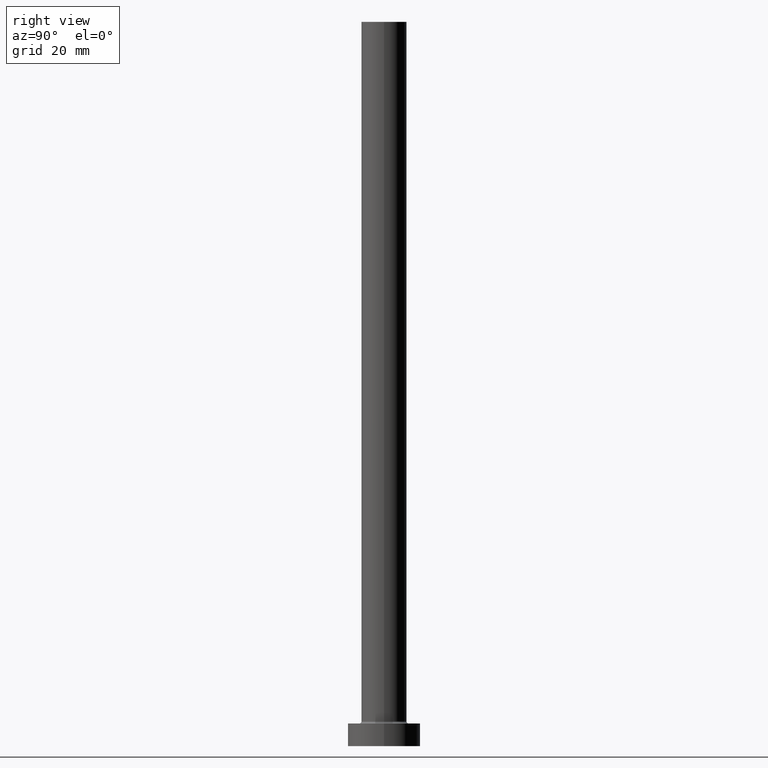
[diagram: clean part render]
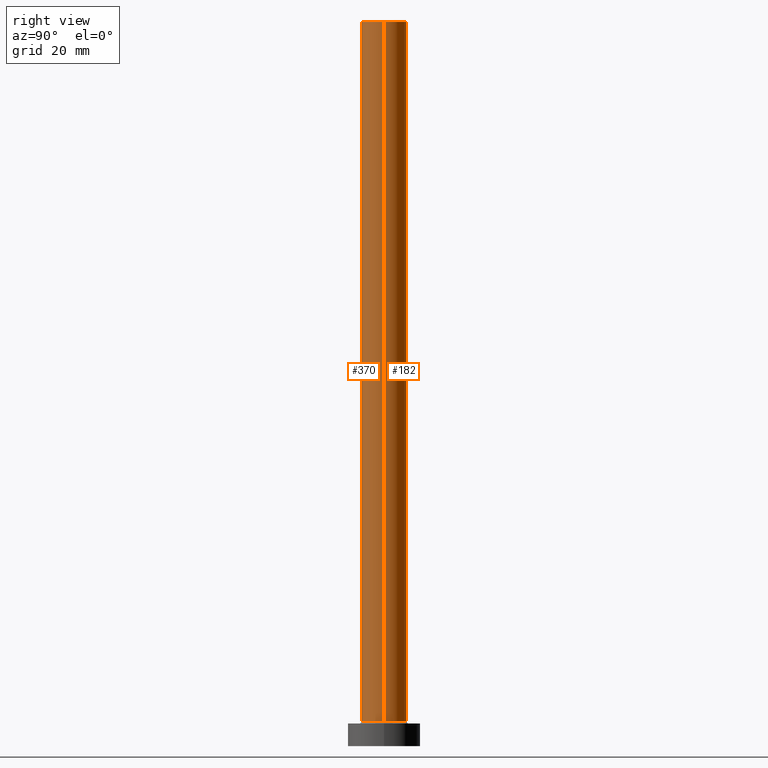
[diagram: same view with one multi-face feature highlighted, each face labeled with its STEP entity id]
A machine part, right view. The highlighted faces form ONE feature: a constant-radius fillet chain: 2 tangent blend faces with common blend radius 5 mm. The faces share edges in the B-rep.
Their STEP definitions:
[1] entity #370 (Cylinder):
#16 = EDGE_CURVE ( 'NONE', #422, #311, #173, .T. ) ;
#34 = CYLINDRICAL_SURFACE ( 'NONE', #41, 5.000000000000000000 ) ;
#41 = AXIS2_PLACEMENT_3D ( 'NONE', #246, #313, #174 ) ;
#42 = CARTESIAN_POINT ( 'NONE',  ( -5.000000000000000000, 0.000000000000000000, 160.0000000000000000 ) ) ;
#53 = CIRCLE ( 'NONE', #434, 5.000000000000000000 ) ;
#88 = CARTESIAN_POINT ( 'NONE',  ( 0.000000000000000000, 0.000000000000000000, 5.500000000000005329 ) ) ;
#90 = VECTOR ( 'NONE', #281, 1000.000000000000000 ) ;
#93 = CARTESIAN_POINT ( 'NONE',  ( 0.000000000000000000, 0.000000000000000000, 160.0000000000000000 ) ) ;
#111 = LINE ( 'NONE', #392, #90 ) ;
#112 = ORIENTED_EDGE ( 'NONE', *, *, #267, .T. ) ;
#129 = CARTESIAN_POINT ( 'NONE',  ( 5.000000000000000000, 6.123233995736766282E-16, 160.0000000000000000 ) ) ;
#132 = AXIS2_PLACEMENT_3D ( 'NONE', #93, #260, #339 ) ;
#137 = DIRECTION ( 'NONE',  ( -0.000000000000000000, -0.000000000000000000, -1.000000000000000000 ) ) ;
#173 = LINE ( 'NONE', #349, #385 ) ;
#174 = DIRECTION ( 'NONE',  ( -1.000000000000000000, 0.000000000000000000, 0.000000000000000000 ) ) ;
#194 = EDGE_CURVE ( 'NONE', #422, #251, #388, .T. ) ;
#208 = CARTESIAN_POINT ( 'NONE',  ( -5.000000000000000000, 0.000000000000000000, 5.500000000000005329 ) ) ;
#212 = ORIENTED_EDGE ( 'NONE', *, *, #194, .F. ) ;
#240 = FACE_OUTER_BOUND ( 'NONE', #387, .T. ) ;
#246 = CARTESIAN_POINT ( 'NONE',  ( 0.000000000000000000, 0.000000000000000000, 160.0000000000000000 ) ) ;
#251 = VERTEX_POINT ( 'NONE', #129 ) ;
#260 = DIRECTION ( 'NONE',  ( 0.000000000000000000, 0.000000000000000000, 1.000000000000000000 ) ) ;
#267 = EDGE_CURVE ( 'NONE', #311, #431, #53, .T. ) ;
#281 = DIRECTION ( 'NONE',  ( -0.000000000000000000, -0.000000000000000000, -1.000000000000000000 ) ) ;
#311 = VERTEX_POINT ( 'NONE', #208 ) ;
#313 = DIRECTION ( 'NONE',  ( -0.000000000000000000, -0.000000000000000000, -1.000000000000000000 ) ) ;
#339 = DIRECTION ( 'NONE',  ( 1.000000000000000000, 0.000000000000000000, 0.000000000000000000 ) ) ;
#349 = CARTESIAN_POINT ( 'NONE',  ( -5.000000000000000000, 0.000000000000000000, 160.0000000000000000 ) ) ;
#350 = ORIENTED_EDGE ( 'NONE', *, *, #409, .F. ) ;
#370 = ADVANCED_FACE ( 'NONE', ( #240 ), #34, .T. ) ;
#371 = DIRECTION ( 'NONE',  ( 1.000000000000000000, 0.000000000000000000, 0.000000000000000000 ) ) ;
#385 = VECTOR ( 'NONE', #137, 1000.000000000000000 ) ;
#387 = EDGE_LOOP ( 'NONE', ( #350, #212, #433, #112 ) ) ;
#388 = CIRCLE ( 'NONE', #132, 5.000000000000000000 ) ;
#392 = CARTESIAN_POINT ( 'NONE',  ( 5.000000000000000000, 6.123233995736766282E-16, 160.0000000000000000 ) ) ;
#409 = EDGE_CURVE ( 'NONE', #251, #431, #111, .T. ) ;
#422 = VERTEX_POINT ( 'NONE', #42 ) ;
#426 = CARTESIAN_POINT ( 'NONE',  ( 5.000000000000000000, 6.123233995736766282E-16, 5.500000000000005329 ) ) ;
#431 = VERTEX_POINT ( 'NONE', #426 ) ;
#433 = ORIENTED_EDGE ( 'NONE', *, *, #16, .T. ) ;
#434 = AXIS2_PLACEMENT_3D ( 'NONE', #88, #441, #371 ) ;
#441 = DIRECTION ( 'NONE',  ( 0.000000000000000000, 0.000000000000000000, 1.000000000000000000 ) ) ;
[2] entity #182 (Cylinder):
#16 = EDGE_CURVE ( 'NONE', #422, #311, #173, .T. ) ;
#42 = CARTESIAN_POINT ( 'NONE',  ( -5.000000000000000000, 0.000000000000000000, 160.0000000000000000 ) ) ;
#50 = FACE_OUTER_BOUND ( 'NONE', #96, .T. ) ;
#63 = ORIENTED_EDGE ( 'NONE', *, *, #395, .T. ) ;
#81 = AXIS2_PLACEMENT_3D ( 'NONE', #333, #192, #404 ) ;
#90 = VECTOR ( 'NONE', #281, 1000.000000000000000 ) ;
#96 = EDGE_LOOP ( 'NONE', ( #329, #322, #63, #228 ) ) ;
#111 = LINE ( 'NONE', #392, #90 ) ;
#129 = CARTESIAN_POINT ( 'NONE',  ( 5.000000000000000000, 6.123233995736766282E-16, 160.0000000000000000 ) ) ;
#137 = DIRECTION ( 'NONE',  ( -0.000000000000000000, -0.000000000000000000, -1.000000000000000000 ) ) ;
#173 = LINE ( 'NONE', #349, #385 ) ;
#182 = ADVANCED_FACE ( 'NONE', ( #50 ), #198, .T. ) ;
#192 = DIRECTION ( 'NONE',  ( -0.000000000000000000, -0.000000000000000000, -1.000000000000000000 ) ) ;
#198 = CYLINDRICAL_SURFACE ( 'NONE', #81, 5.000000000000000000 ) ;
#206 = DIRECTION ( 'NONE',  ( 1.000000000000000000, 0.000000000000000000, 0.000000000000000000 ) ) ;
#208 = CARTESIAN_POINT ( 'NONE',  ( -5.000000000000000000, 0.000000000000000000, 5.500000000000005329 ) ) ;
#214 = DIRECTION ( 'NONE',  ( 1.000000000000000000, 0.000000000000000000, 0.000000000000000000 ) ) ;
#218 = DIRECTION ( 'NONE',  ( 0.000000000000000000, 0.000000000000000000, 1.000000000000000000 ) ) ;
#228 = ORIENTED_EDGE ( 'NONE', *, *, #16, .F. ) ;
#251 = VERTEX_POINT ( 'NONE', #129 ) ;
#270 = CIRCLE ( 'NONE', #280, 5.000000000000000000 ) ;
#280 = AXIS2_PLACEMENT_3D ( 'NONE', #424, #218, #214 ) ;
#281 = DIRECTION ( 'NONE',  ( -0.000000000000000000, -0.000000000000000000, -1.000000000000000000 ) ) ;
#305 = AXIS2_PLACEMENT_3D ( 'NONE', #306, #377, #206 ) ;
#306 = CARTESIAN_POINT ( 'NONE',  ( 0.000000000000000000, 0.000000000000000000, 160.0000000000000000 ) ) ;
#311 = VERTEX_POINT ( 'NONE', #208 ) ;
#322 = ORIENTED_EDGE ( 'NONE', *, *, #409, .T. ) ;
#326 = CIRCLE ( 'NONE', #305, 5.000000000000000000 ) ;
#329 = ORIENTED_EDGE ( 'NONE', *, *, #332, .F. ) ;
#332 = EDGE_CURVE ( 'NONE', #251, #422, #326, .T. ) ;
#333 = CARTESIAN_POINT ( 'NONE',  ( 0.000000000000000000, 0.000000000000000000, 160.0000000000000000 ) ) ;
#349 = CARTESIAN_POINT ( 'NONE',  ( -5.000000000000000000, 0.000000000000000000, 160.0000000000000000 ) ) ;
#377 = DIRECTION ( 'NONE',  ( 0.000000000000000000, 0.000000000000000000, 1.000000000000000000 ) ) ;
#385 = VECTOR ( 'NONE', #137, 1000.000000000000000 ) ;
#392 = CARTESIAN_POINT ( 'NONE',  ( 5.000000000000000000, 6.123233995736766282E-16, 160.0000000000000000 ) ) ;
#395 = EDGE_CURVE ( 'NONE', #431, #311, #270, .T. ) ;
#404 = DIRECTION ( 'NONE',  ( -1.000000000000000000, 0.000000000000000000, 0.000000000000000000 ) ) ;
#409 = EDGE_CURVE ( 'NONE', #251, #431, #111, .T. ) ;
#422 = VERTEX_POINT ( 'NONE', #42 ) ;
#424 = CARTESIAN_POINT ( 'NONE',  ( 0.000000000000000000, 0.000000000000000000, 5.500000000000005329 ) ) ;
#426 = CARTESIAN_POINT ( 'NONE',  ( 5.000000000000000000, 6.123233995736766282E-16, 5.500000000000005329 ) ) ;
#431 = VERTEX_POINT ( 'NONE', #426 ) ;